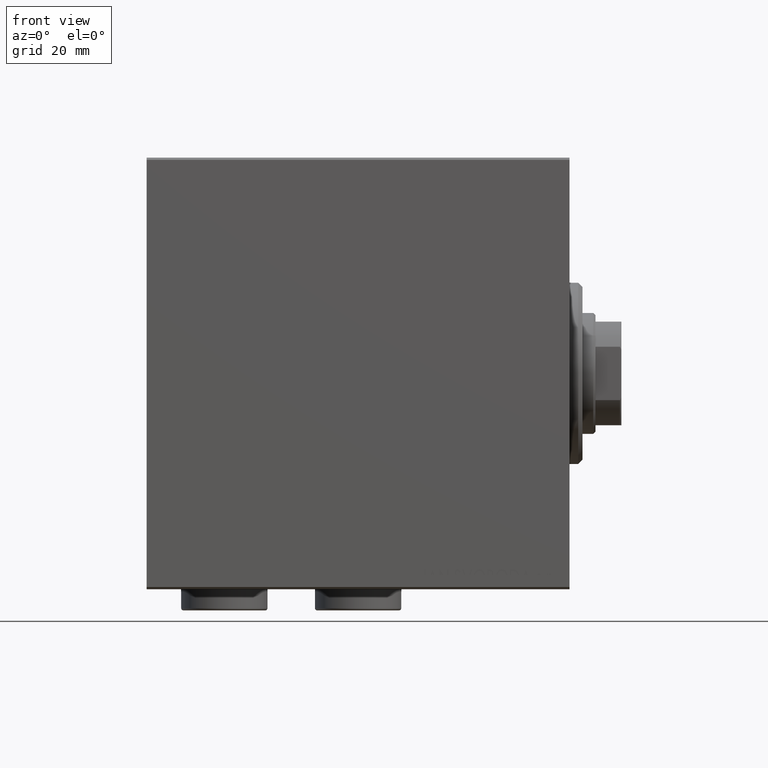
[diagram: clean part render]
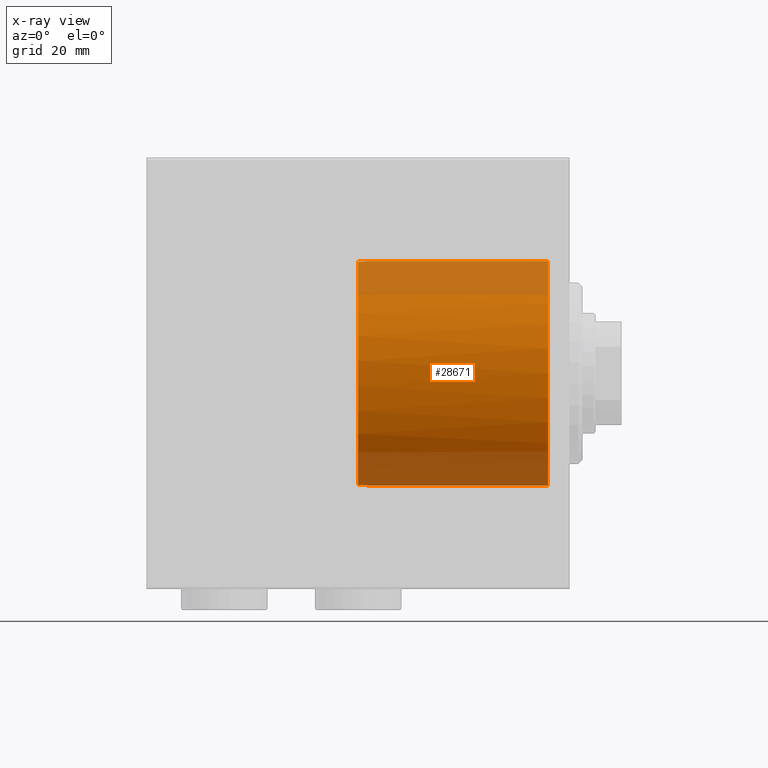
[diagram: x-ray — body ghosted, one internal face saturated and labeled with its STEP entity id]
A machine part, front view, then the same camera in x-ray: the body is ghosted and one INTERNAL B-rep face — a face not visible from any outside direction — is saturated and labeled: STEP entity #28671.
In plain terms, the highlighted cylindrical surface (partial cylindrical patch) has radius 26 mm, axis along (1, 0, 0).
Its self-contained STEP definition (entity closure, byte-faithful):
#51 = CARTESIAN_POINT ( 'NONE',  ( 47.11644282775269943, -1.651905895843509997, 25.94772759100586867 ) ) ;
#1186 = CARTESIAN_POINT ( 'NONE',  ( 48.19352101961040802, -2.372015157584302258, -25.89164960406209559 ) ) ;
#1959 = DIRECTION ( 'NONE',  ( -1.000000000000000000, -0.000000000000000000, -0.000000000000000000 ) ) ;
#4254 = CARTESIAN_POINT ( 'NONE',  ( 48.35251734720075234, -2.420193834591356286, 25.88713351657672845 ) ) ;
#4478 = CARTESIAN_POINT ( 'NONE',  ( 47.74728814243972863, -2.169657715646846619, 25.90947464024000624 ) ) ;
#5152 = CARTESIAN_POINT ( 'NONE',  ( 48.67213913165271322, -2.483762860601321787, -25.88111169265567213 ) ) ;
#8036 = VERTEX_POINT ( 'NONE', #39350 ) ;
#8420 = VERTEX_POINT ( 'NONE', #39762 ) ;
#8447 = CARTESIAN_POINT ( 'NONE',  ( 48.35239313040842291, -2.420160333356796478, -25.88713665812166198 ) ) ;
#8908 = CARTESIAN_POINT ( 'NONE',  ( 48.83467817174352632, -2.499999999999998668, -25.87952858921506305 ) ) ;
#9146 = CARTESIAN_POINT ( 'NONE',  ( 46.50000000000000711, -0.1632048367001796285, -26.00000000000001066 ) ) ;
#9305 = ORIENTED_EDGE ( 'NONE', *, *, #29922, .T. ) ;
#9372 = EDGE_CURVE ( 'NONE', #8420, #28748, #15943, .T. ) ;
#10043 = DIRECTION ( 'NONE',  ( -1.000000000000000000, 0.000000000000000000, 0.000000000000000000 ) ) ;
#10425 = CARTESIAN_POINT ( 'NONE',  ( 46.50000000000000000, 3.184081639590435214E-15, -26.00000000000000355 ) ) ;
#11293 = CARTESIAN_POINT ( 'NONE',  ( 46.57991866312166707, -0.6482818571340246416, 25.99241766690434474 ) ) ;
#12001 = FACE_OUTER_BOUND ( 'NONE', #22423, .T. ) ;
#12058 = EDGE_CURVE ( 'NONE', #40084, #8420, #41024, .T. ) ;
#12419 = CARTESIAN_POINT ( 'NONE',  ( 47.47539377652167758, -1.988033269128851366, -25.92404319843367944 ) ) ;
#12644 = ORIENTED_EDGE ( 'NONE', *, *, #12849, .F. ) ;
#12692 = DIRECTION ( 'NONE',  ( 0.000000000000000000, 0.000000000000000000, 1.000000000000000000 ) ) ;
#12849 = EDGE_CURVE ( 'NONE', #34098, #28748, #18998, .T. ) ;
#13319 = DIRECTION ( 'NONE',  ( 0.000000000000000000, 0.000000000000000000, 1.000000000000000000 ) ) ;
#13647 = CARTESIAN_POINT ( 'NONE',  ( 46.50000000000000000, -1.796472939459810184E-23, 26.00000000000000355 ) ) ;
#14802 = CARTESIAN_POINT ( 'NONE',  ( 46.50000000000000711, -0.1632508128424748906, 26.00000000000001066 ) ) ;
#15943 = CIRCLE ( 'NONE', #35368, 26.00000000000000355 ) ;
#16404 = CARTESIAN_POINT ( 'NONE',  ( 46.51582698692548945, -0.3255351818746884951, -25.99846335647869111 ) ) ;
#16618 = B_SPLINE_CURVE_WITH_KNOTS ( 'NONE', 3,
 ( #44464, #8908, #5152, #8447, #1186, #40951, #22728, #12419, #19692, #40722, #44927, #19923, #33247, #23184, #26223, #16404, #9146, #26682 ),
 .UNSPECIFIED., .F., .F.,
 ( 4, 2, 2, 2, 2, 2, 2, 2, 4 ),
 ( 0.000000000000000000, 0.0004889038340697617752, 0.0009778076681395235503, 0.001466711502209285325, 0.001955615336279047101, 0.002444519170348808876, 0.002933423004418570651, 0.003422326838488332426, 0.003911230672558094201 ),
 .UNSPECIFIED. ) ;
#17881 = ORIENTED_EDGE ( 'NONE', *, *, #12058, .T. ) ;
#18089 = CARTESIAN_POINT ( 'NONE',  ( 46.50000000000000000, -1.796472939459810184E-23, 26.00000000000000355 ) ) ;
#18339 = CARTESIAN_POINT ( 'NONE',  ( 48.99999999999999289, -2.500000000000019540, 25.87952858921506305 ) ) ;
#18758 = CARTESIAN_POINT ( 'NONE',  ( 48.99999999999999289, 0.000000000000000000, 26.00000000000000355 ) ) ;
#18932 = CARTESIAN_POINT ( 'NONE',  ( 5.000000000000000000, 0.000000000000000000, 0.000000000000000000 ) ) ;
#18998 = LINE ( 'NONE', #18758, #24881 ) ;
#19692 = CARTESIAN_POINT ( 'NONE',  ( 47.34681529442086401, -1.882434762911839643, -25.93202269649926350 ) ) ;
#19736 = DIRECTION ( 'NONE',  ( -1.000000000000000000, -0.000000000000000000, -0.000000000000000000 ) ) ;
#19923 = CARTESIAN_POINT ( 'NONE',  ( 46.83014300857264089, -1.252500565541644351, -25.97017489915007360 ) ) ;
#20890 = CARTESIAN_POINT ( 'NONE',  ( 5.000000000000000000, 0.000000000000000000, 26.00000000000000355 ) ) ;
#22282 = CARTESIAN_POINT ( 'NONE',  ( 46.51583617535392534, -0.3255658700105529824, 25.99846250072058496 ) ) ;
#22423 = EDGE_LOOP ( 'NONE', ( #9305, #17881, #33452, #12644, #23676, #32710 ) ) ;
#22728 = CARTESIAN_POINT ( 'NONE',  ( 47.74713917450439027, -2.169571424906405532, -25.90948189110790167 ) ) ;
#23184 = CARTESIAN_POINT ( 'NONE',  ( 46.62793841299855302, -0.8061310401765081624, -25.98793611466011555 ) ) ;
#23676 = ORIENTED_EDGE ( 'NONE', *, *, #40495, .T. ) ;
#24881 = VECTOR ( 'NONE', #32332, 1000.000000000000000 ) ;
#26013 = CARTESIAN_POINT ( 'NONE',  ( 47.47552450085674991, -1.988133811806928053, 25.92403546291849636 ) ) ;
#26162 = DIRECTION ( 'NONE',  ( -1.000000000000000000, 0.000000000000000000, 0.000000000000000000 ) ) ;
#26223 = CARTESIAN_POINT ( 'NONE',  ( 46.57994581485352370, -0.6484030031399271587, -25.99241511668976301 ) ) ;
#26269 = CARTESIAN_POINT ( 'NONE',  ( 48.99999999999999289, 0.000000000000000000, 0.000000000000000000 ) ) ;
#26682 = CARTESIAN_POINT ( 'NONE',  ( 46.50000000000000000, 3.184081639590435214E-15, -26.00000000000000355 ) ) ;
#27115 = CARTESIAN_POINT ( 'NONE',  ( 48.99999999999999289, 0.000000000000000000, 0.000000000000000000 ) ) ;
#28256 = AXIS2_PLACEMENT_3D ( 'NONE', #26269, #19736, #12692 ) ;
#28605 = CARTESIAN_POINT ( 'NONE',  ( 47.34693974846521769, -1.882544160077678219, 25.93201472526049756 ) ) ;
#28671 = ADVANCED_FACE ( 'NONE', ( #12001 ), #41226, .F. ) ;
#28748 = VERTEX_POINT ( 'NONE', #20890 ) ;
#29294 = CARTESIAN_POINT ( 'NONE',  ( 48.83477254102518827, -2.500000000000020428, 25.87952858921507371 ) ) ;
#29922 = EDGE_CURVE ( 'NONE', #8036, #40084, #16618, .T. ) ;
#30938 = VECTOR ( 'NONE', #1959, 1000.000000000000000 ) ;
#31270 = EDGE_CURVE ( 'NONE', #8036, #45602, #33525, .T. ) ;
#32116 = CARTESIAN_POINT ( 'NONE',  ( 46.83017875354468629, -1.252567112413196071, 25.97017182302258220 ) ) ;
#32332 = DIRECTION ( 'NONE',  ( -1.000000000000000000, -0.000000000000000000, -0.000000000000000000 ) ) ;
#32348 = CARTESIAN_POINT ( 'NONE',  ( 47.01297106214286003, -1.526029034057477807, 25.95553860499968124 ) ) ;
#32580 = CARTESIAN_POINT ( 'NONE',  ( 48.99999999999999289, -2.500000000000019540, 25.87952858921506305 ) ) ;
#32710 = ORIENTED_EDGE ( 'NONE', *, *, #31270, .F. ) ;
#33247 = CARTESIAN_POINT ( 'NONE',  ( 46.75257165897365752, -1.107063357904832790, -25.97685665116501141 ) ) ;
#33452 = ORIENTED_EDGE ( 'NONE', *, *, #9372, .T. ) ;
#33525 = CIRCLE ( 'NONE', #42415, 26.00000000000000355 ) ;
#34017 = CARTESIAN_POINT ( 'NONE',  ( 48.99999999999999289, 3.184081677783118585E-15, -26.00000000000000355 ) ) ;
#34098 = VERTEX_POINT ( 'NONE', #13647 ) ;
#35368 = AXIS2_PLACEMENT_3D ( 'NONE', #18932, #26162, #36457 ) ;
#35992 = B_SPLINE_CURVE_WITH_KNOTS ( 'NONE', 3,
 ( #18089, #14802, #22282, #11293, #43325, #36535, #32116, #32348, #51, #28605, #26013, #4478, #36313, #40059, #4254, #40275, #29294, #32580 ),
 .UNSPECIFIED., .F., .F.,
 ( 4, 2, 2, 2, 2, 2, 2, 2, 4 ),
 ( 0.007820654687069023003, 0.008309569309530018960, 0.008798483931991014917, 0.009287398554452010874, 0.009776313176913006830, 0.01026522779937400279, 0.01075414242183499874, 0.01124305704429599470, 0.01173197166675699066 ),
 .UNSPECIFIED. ) ;
#36313 = CARTESIAN_POINT ( 'NONE',  ( 47.89086699118785617, -2.246479982575416035, 25.90284346713514907 ) ) ;
#36457 = DIRECTION ( 'NONE',  ( 0.000000000000000000, 0.000000000000000000, 1.000000000000000000 ) ) ;
#36535 = CARTESIAN_POINT ( 'NONE',  ( 46.75262534503168865, -1.107177428594329882, 25.97685196186657564 ) ) ;
#39350 = CARTESIAN_POINT ( 'NONE',  ( 48.99999999999999289, -2.499999999999999112, -25.87952858921507016 ) ) ;
#39762 = CARTESIAN_POINT ( 'NONE',  ( 5.000000000000000000, 3.184081677783118585E-15, -26.00000000000000355 ) ) ;
#40059 = CARTESIAN_POINT ( 'NONE',  ( 48.19357266735823941, -2.372029363333639562, 25.89164824213594329 ) ) ;
#40084 = VERTEX_POINT ( 'NONE', #10425 ) ;
#40275 = CARTESIAN_POINT ( 'NONE',  ( 48.67227445165369915, -2.483780978192544620, 25.88110994440602042 ) ) ;
#40495 = EDGE_CURVE ( 'NONE', #34098, #45602, #35992, .T. ) ;
#40722 = CARTESIAN_POINT ( 'NONE',  ( 47.11633526003846839, -1.651783113730551422, -25.94773543709675678 ) ) ;
#40951 = CARTESIAN_POINT ( 'NONE',  ( 47.89073077407087453, -2.246416265527503953, -25.90284905351749245 ) ) ;
#41024 = LINE ( 'NONE', #34017, #30938 ) ;
#41226 = CYLINDRICAL_SURFACE ( 'NONE', #28256, 26.00000000000000355 ) ;
#42415 = AXIS2_PLACEMENT_3D ( 'NONE', #27115, #10043, #13319 ) ;
#43325 = CARTESIAN_POINT ( 'NONE',  ( 46.62795462308692152, -0.8061857280105739765, 25.98793459048009424 ) ) ;
#44464 = CARTESIAN_POINT ( 'NONE',  ( 48.99999999999999289, -2.499999999999999112, -25.87952858921507016 ) ) ;
#44927 = CARTESIAN_POINT ( 'NONE',  ( 47.01288410097976822, -1.525912000670203161, -25.95554535210804303 ) ) ;
#45602 = VERTEX_POINT ( 'NONE', #18339 ) ;